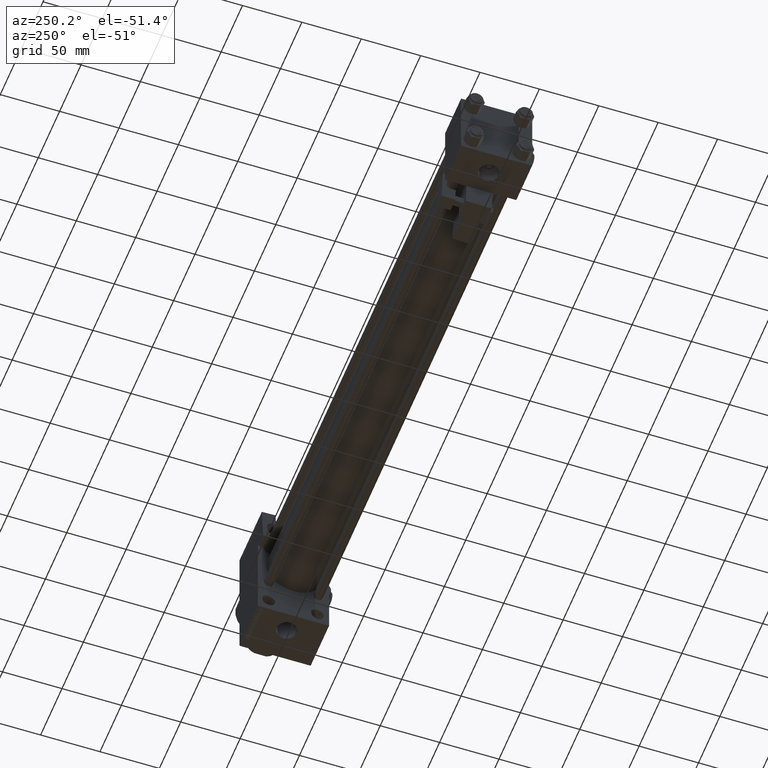
[diagram: clean part render]
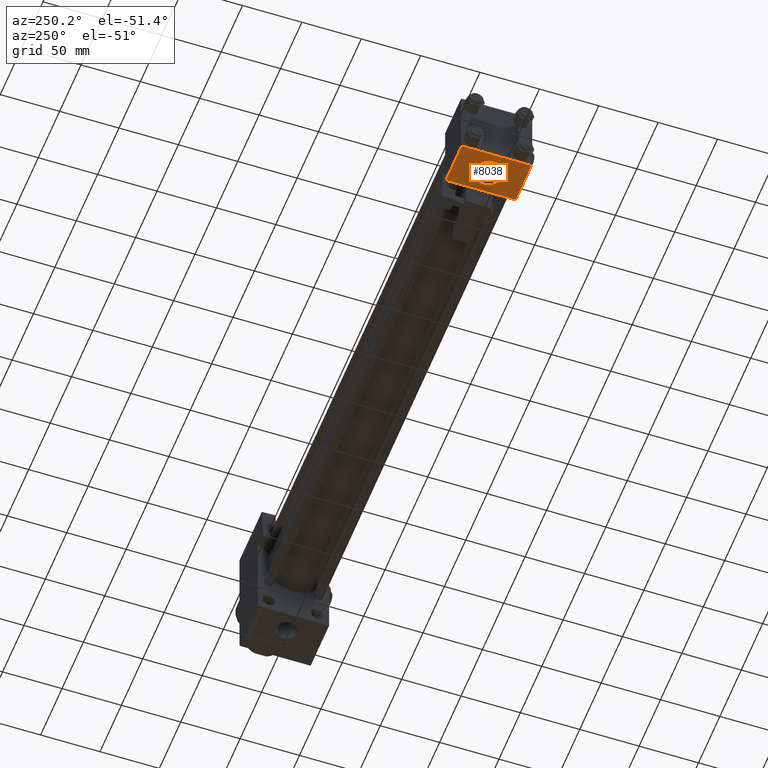
[diagram: same view with one face highlighted and labeled with its STEP entity id]
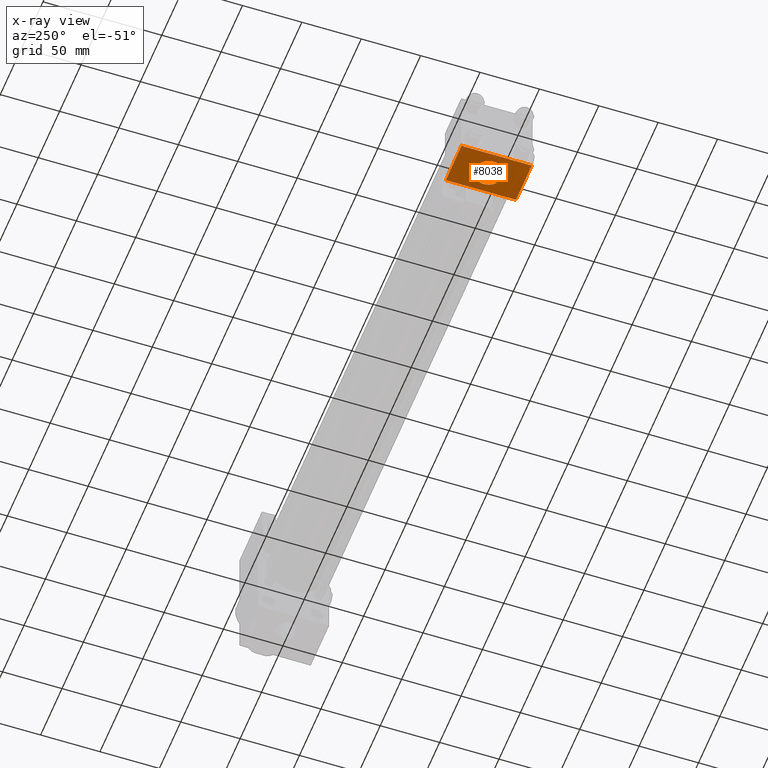
[diagram: x-ray of the same camera — body ghosted, the highlighted face saturated]
A machine part, auxiliary view. The second image highlights one B-rep face of the part: STEP entity #8038.
The next image is the same camera in x-ray: the body ghosted, the highlighted face saturated — about 0% of this face is hidden behind the body in this view.
In plain terms, the highlighted planar face has unit normal (0, 0, -1).
Its self-contained STEP definition (entity closure, byte-faithful):
#240 = FACE_BOUND ( 'NONE', #7779, .T. ) ;
#3423 = ORIENTED_EDGE ( 'NONE', *, *, #41270, .T. ) ;
#4650 = DIRECTION ( 'NONE',  ( 0.000000000000000000, 1.156482317317871725E-16, -1.000000000000000000 ) ) ;
#5391 = EDGE_CURVE ( 'NONE', #22830, #23413, #26861, .T. ) ;
#6021 = CARTESIAN_POINT ( 'NONE',  ( 0.000000000000000000, 29.49999999999997868, -30.00000000000000000 ) ) ;
#7779 = EDGE_LOOP ( 'NONE', ( #40076, #44253 ) ) ;
#8038 = ADVANCED_FACE ( 'NONE', ( #240, #24198 ), #8042, .T. ) ;
#8042 = PLANE ( 'NONE',  #19964 ) ;
#8555 = CARTESIAN_POINT ( 'NONE',  ( 37.00000000000000000, 29.99999999999999289, -30.00000000000000000 ) ) ;
#8797 = AXIS2_PLACEMENT_3D ( 'NONE', #31433, #31176, #22609 ) ;
#10146 = CARTESIAN_POINT ( 'NONE',  ( 0.000000000000000000, -29.50000000000000000, -30.00000000000000711 ) ) ;
#10311 = CARTESIAN_POINT ( 'NONE',  ( 18.50000000000000355, -12.00000000000000000, -30.00000000000000000 ) ) ;
#13590 = CARTESIAN_POINT ( 'NONE',  ( 37.00000000000000000, 29.99999999999999289, -30.00000000000000000 ) ) ;
#14006 = EDGE_CURVE ( 'NONE', #24055, #34730, #15455, .T. ) ;
#15273 = VERTEX_POINT ( 'NONE', #6021 ) ;
#15422 = EDGE_CURVE ( 'NONE', #34730, #24055, #33665, .T. ) ;
#15455 = CIRCLE ( 'NONE', #8797, 12.00000000000000178 ) ;
#19964 = AXIS2_PLACEMENT_3D ( 'NONE', #8555, #4650, #36409 ) ;
#22430 = CARTESIAN_POINT ( 'NONE',  ( 0.000000000000000000, -29.50000000000001066, -30.00000000000000711 ) ) ;
#22609 = DIRECTION ( 'NONE',  ( 0.000000000000000000, 1.000000000000000000, -2.891205793294677833E-16 ) ) ;
#22684 = DIRECTION ( 'NONE',  ( -1.000000000000000000, 0.000000000000000000, 0.000000000000000000 ) ) ;
#22830 = VERTEX_POINT ( 'NONE', #33024 ) ;
#22897 = DIRECTION ( 'NONE',  ( 0.000000000000000000, -1.734723475976806848E-16, -1.000000000000000000 ) ) ;
#23088 = EDGE_LOOP ( 'NONE', ( #48883, #3423, #31811, #29077 ) ) ;
#23413 = VERTEX_POINT ( 'NONE', #10146 ) ;
#24055 = VERTEX_POINT ( 'NONE', #38060 ) ;
#24198 = FACE_OUTER_BOUND ( 'NONE', #23088, .T. ) ;
#25135 = DIRECTION ( 'NONE',  ( 1.000000000000000000, 0.000000000000000000, 0.000000000000000000 ) ) ;
#25761 = DIRECTION ( 'NONE',  ( 0.000000000000000000, -1.000000000000000000, -1.156482317317871725E-16 ) ) ;
#26861 = LINE ( 'NONE', #22430, #33309 ) ;
#27624 = EDGE_CURVE ( 'NONE', #50607, #22830, #33386, .T. ) ;
#27996 = EDGE_CURVE ( 'NONE', #15273, #23413, #41396, .T. ) ;
#28703 = DIRECTION ( 'NONE',  ( 0.000000000000000000, -1.000000000000000000, -1.156482317317871725E-16 ) ) ;
#29042 = VECTOR ( 'NONE', #25761, 1000.000000000000000 ) ;
#29077 = ORIENTED_EDGE ( 'NONE', *, *, #5391, .T. ) ;
#29787 = LINE ( 'NONE', #45686, #33988 ) ;
#30446 = CARTESIAN_POINT ( 'NONE',  ( 18.50000000000000355, 2.265018109976774967E-15, -30.00000000000000355 ) ) ;
#31176 = DIRECTION ( 'NONE',  ( 0.000000000000000000, -1.734723475976806848E-16, -1.000000000000000000 ) ) ;
#31433 = CARTESIAN_POINT ( 'NONE',  ( 18.50000000000000355, 2.265018109976774967E-15, -30.00000000000000355 ) ) ;
#31811 = ORIENTED_EDGE ( 'NONE', *, *, #27624, .T. ) ;
#33024 = CARTESIAN_POINT ( 'NONE',  ( 37.00000000000000000, -29.50000000000000000, -30.00000000000000711 ) ) ;
#33309 = VECTOR ( 'NONE', #22684, 1000.000000000000000 ) ;
#33386 = LINE ( 'NONE', #13590, #38268 ) ;
#33665 = CIRCLE ( 'NONE', #34483, 12.00000000000000178 ) ;
#33988 = VECTOR ( 'NONE', #25135, 1000.000000000000000 ) ;
#34483 = AXIS2_PLACEMENT_3D ( 'NONE', #30446, #22897, #42966 ) ;
#34730 = VERTEX_POINT ( 'NONE', #10311 ) ;
#36409 = DIRECTION ( 'NONE',  ( 0.000000000000000000, 1.000000000000000000, 1.156482317317871725E-16 ) ) ;
#37355 = CARTESIAN_POINT ( 'NONE',  ( 37.00000000000000000, 29.49999999999997868, -30.00000000000000000 ) ) ;
#38060 = CARTESIAN_POINT ( 'NONE',  ( 18.50000000000000355, 12.00000000000000355, -30.00000000000000711 ) ) ;
#38268 = VECTOR ( 'NONE', #28703, 1000.000000000000000 ) ;
#40076 = ORIENTED_EDGE ( 'NONE', *, *, #14006, .F. ) ;
#41270 = EDGE_CURVE ( 'NONE', #15273, #50607, #29787, .T. ) ;
#41396 = LINE ( 'NONE', #45546, #29042 ) ;
#42966 = DIRECTION ( 'NONE',  ( 0.000000000000000000, 1.000000000000000000, -2.891205793294677833E-16 ) ) ;
#44253 = ORIENTED_EDGE ( 'NONE', *, *, #15422, .F. ) ;
#45546 = CARTESIAN_POINT ( 'NONE',  ( 0.000000000000000000, 29.99999999999999289, -30.00000000000000000 ) ) ;
#45686 = CARTESIAN_POINT ( 'NONE',  ( 37.00000000000000000, 29.49999999999997868, -30.00000000000000000 ) ) ;
#48883 = ORIENTED_EDGE ( 'NONE', *, *, #27996, .F. ) ;
#50607 = VERTEX_POINT ( 'NONE', #37355 ) ;